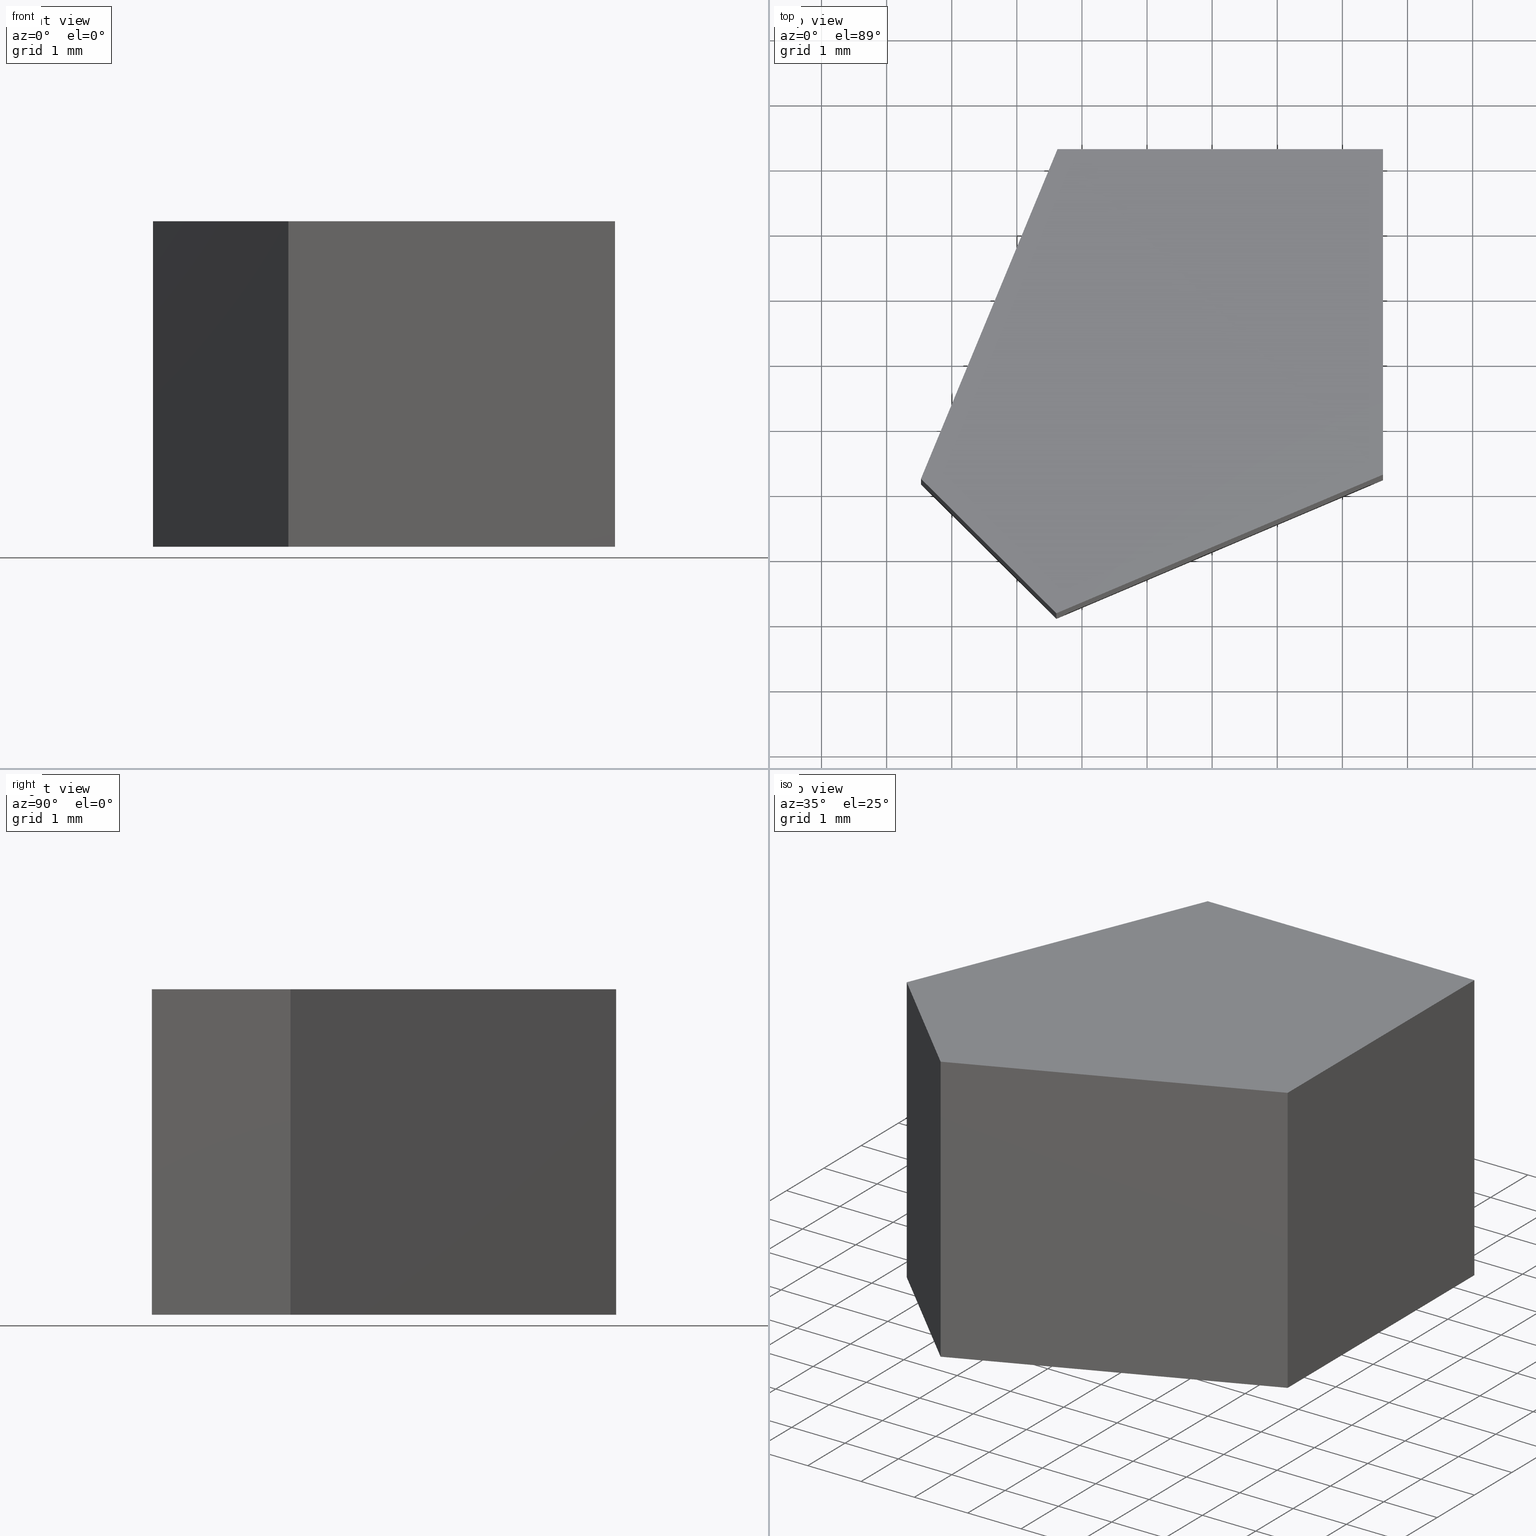
[diagram: canonical four-view strip — front | top / right | iso, engineering-drawing reading convention]
A machine part, canonical four-view strip (front | top / right | iso — engineering-drawing reading convention). The complete STEP part file that produces these views, byte-faithful:
ISO-10303-21;
HEADER;
FILE_DESCRIPTION (( 'STEP AP203' ),
    '1' );
FILE_NAME ('365500.STEP',
    '2019-07-23T09:59:26',
    ( '' ),
    ( '' ),
    'SwSTEP 2.0',
    'SolidWorks 2016',
    '' );
FILE_SCHEMA (( 'CONFIG_CONTROL_DESIGN' ));
ENDSEC;

DATA;
#1 = EDGE_CURVE ( 'NONE', #88, #216, #329, .T. ) ;
#2 = CC_DESIGN_APPROVAL ( #69, ( #335 ) ) ;
#3 = COORDINATED_UNIVERSAL_TIME_OFFSET ( 8, 0, .AHEAD. ) ;
#4 = ORIENTED_EDGE ( 'NONE', *, *, #114, .T. ) ;
#5 = COORDINATED_UNIVERSAL_TIME_OFFSET ( 8, 0, .AHEAD. ) ;
#6 = PERSON_AND_ORGANIZATION ( #76, #61 ) ;
#7 = ORIENTED_EDGE ( 'NONE', *, *, #191, .T. ) ;
#8 = APPROVAL ( #271, 'δָ��' ) ;
#9 = EDGE_CURVE ( 'NONE', #216, #322, #197, .T. ) ;
#10 = DATE_AND_TIME ( #345, #17 ) ;
#11 = ORIENTED_EDGE ( 'NONE', *, *, #176, .T. ) ;
#12 = DATE_AND_TIME ( #165, #146 ) ;
#13 = APPROVAL ( #294, 'δָ��' ) ;
#14 = VECTOR ( 'NONE', #20, 1000.000000000000000 ) ;
#15 = CARTESIAN_POINT ( 'NONE',  ( 11.60801107383556300, 9.117638843926226100, 5.000000000000000000 ) ) ;
#16 = CARTESIAN_POINT ( 'NONE',  ( 11.62476252515132200, 16.24712349419276000, 0.0000000000000000000 ) ) ;
#17 = LOCAL_TIME ( 17, 59, 26.00000000000000000, #86 ) ;
#18 = ORIENTED_EDGE ( 'NONE', *, *, #151, .F. ) ;
#19 = CC_DESIGN_SECURITY_CLASSIFICATION ( #327, ( #101 ) ) ;
#20 = DIRECTION ( 'NONE',  ( -0.0000000000000000000, -0.0000000000000000000, -1.000000000000000000 ) ) ;
#21 = CARTESIAN_POINT ( 'NONE',  ( 16.62476252515132200, 16.24712349419276000, 0.0000000000000000000 ) ) ;
#22 = CC_DESIGN_PERSON_AND_ORGANIZATION_ASSIGNMENT ( #262, #34, ( #101 ) ) ;
#23 =( LENGTH_UNIT ( ) NAMED_UNIT ( * ) SI_UNIT ( .MILLI., .METRE. ) );
#24 = CALENDAR_DATE ( 2019, 23, 7 ) ;
#25 = DIRECTION ( 'NONE',  ( 1.000000000000000000, 0.0000000000000000000, -0.0000000000000000000 ) ) ;
#26 = EDGE_LOOP ( 'NONE', ( #4, #169, #293, #128, #305 ) ) ;
#27 = CARTESIAN_POINT ( 'NONE',  ( 0.0000000000000000000, 0.0000000000000000000, 0.0000000000000000000 ) ) ;
#28 = DIRECTION ( 'NONE',  ( -0.0000000000000000000, -0.0000000000000000000, -1.000000000000000000 ) ) ;
#29 = PLANE ( 'NONE',  #161 ) ;
#30 = ORIENTED_EDGE ( 'NONE', *, *, #111, .T. ) ;
#31 = APPROVAL_STATUS ( 'not_yet_approved' ) ;
#32 = MANIFOLD_SOLID_BREP ( '͹̨-����1', #160 ) ;
#33 = PERSON_AND_ORGANIZATION_ROLE ( 'creator' ) ;
#34 = PERSON_AND_ORGANIZATION_ROLE ( 'creator' ) ;
#35 = APPROVAL_STATUS ( 'not_yet_approved' ) ;
#36 = DATE_AND_TIME ( #105, #277 ) ;
#37 = VECTOR ( 'NONE', #336, 1000.000000000000100 ) ;
#38 = EDGE_LOOP ( 'NONE', ( #208, #149, #227, #68 ) ) ;
#39 = MECHANICAL_CONTEXT ( 'NONE', #222, 'mechanical' ) ;
#40 = CC_DESIGN_APPROVAL ( #154, ( #287 ) ) ;
#41 = VECTOR ( 'NONE', #78, 999.9999999999998900 ) ;
#42 = ORIENTED_EDGE ( 'NONE', *, *, #114, .F. ) ;
#43 = CC_DESIGN_PERSON_AND_ORGANIZATION_ASSIGNMENT ( #107, #116, ( #335 ) ) ;
#44 = VECTOR ( 'NONE', #82, 999.9999999999998900 ) ;
#45 = CARTESIAN_POINT ( 'NONE',  ( 11.62476252515132200, 16.24712349419276000, 5.000000000000000000 ) ) ;
#46 = CC_DESIGN_PERSON_AND_ORGANIZATION_ASSIGNMENT ( #6, #252, ( #213 ) ) ;
#47 = LINE ( 'NONE', #183, #14 ) ;
#48 = DIRECTION ( 'NONE',  ( -1.000000000000000000, 0.0000000000000000000, 0.0000000000000000000 ) ) ;
#49 = CARTESIAN_POINT ( 'NONE',  ( 16.62476252515132200, 11.24712349419276000, 5.000000000000000000 ) ) ;
#50 = LOCAL_TIME ( 17, 59, 26.00000000000000000, #91 ) ;
#51 = LINE ( 'NONE', #341, #44 ) ;
#52 = PRODUCT_DEFINITION_SHAPE ( 'NONE', 'NONE',  #335 ) ;
#53 = ADVANCED_FACE ( 'NONE', ( #207 ), #102, .F. ) ;
#54 = PRODUCT ( '365500', '365500', '', ( #267 ) ) ;
#55 = PRODUCT_DEFINITION ( 'δ֪', '', #101, #73 ) ;
#56 = DIRECTION ( 'NONE',  ( -0.9205048534524398200, -0.3907311284892749400, 0.0000000000000000000 ) ) ;
#57 = AXIS2_PLACEMENT_3D ( 'NONE', #285, #137, #243 ) ;
#58 = APPROVAL_STATUS ( 'not_yet_approved' ) ;
#59 = APPROVAL_STATUS ( 'not_yet_approved' ) ;
#60 = PERSON_AND_ORGANIZATION ( #76, #61 ) ;
#61 = ORGANIZATION ( 'δָ��', 'δָ��', '' ) ;
#62 = SECURITY_CLASSIFICATION_LEVEL ( 'unclassified' ) ;
#63 = APPLICATION_PROTOCOL_DEFINITION ( 'international standard', 'config_control_design', 1994, #200 ) ;
#64 = APPROVAL_PERSON_ORGANIZATION ( #220, #331, #219 ) ;
#65 = ORIENTED_EDGE ( 'NONE', *, *, #314, .F. ) ;
#66 = AXIS2_PLACEMENT_3D ( 'NONE', #15, #129, #261 ) ;
#67 = LOCAL_TIME ( 17, 59, 26.00000000000000000, #225 ) ;
#68 = ORIENTED_EDGE ( 'NONE', *, *, #236, .T. ) ;
#69 = APPROVAL ( #31, 'δָ��' ) ;
#70 = APPROVAL_PERSON_ORGANIZATION ( #60, #93, #247 ) ;
#71 = CARTESIAN_POINT ( 'NONE',  ( 0.0000000000000000000, 0.0000000000000000000, 0.0000000000000000000 ) ) ;
#72 = DIRECTION ( 'NONE',  ( 0.0000000000000000000, -0.0000000000000000000, 1.000000000000000000 ) ) ;
#73 = DESIGN_CONTEXT ( 'detailed design', #200, 'design' ) ;
#74 = PERSON_AND_ORGANIZATION ( #76, #61 ) ;
#75 = EDGE_LOOP ( 'NONE', ( #7, #97, #18, #11 ) ) ;
#76 = PERSON ( 'δָ��', 'δָ��', 'δָ��', ('δָ��'), ('δָ��'), ('δָ��') ) ;
#77 = CARTESIAN_POINT ( 'NONE',  ( 16.62476252515132200, 16.24712349419276000, 0.0000000000000000000 ) ) ;
#78 = DIRECTION ( 'NONE',  ( 0.7096581851591069500, -0.7045461377629449500, -0.0000000000000000000 ) ) ;
#79 = DATE_AND_TIME ( #96, #67 ) ;
#80 = LINE ( 'NONE', #306, #41 ) ;
#81 = ORIENTED_EDGE ( 'NONE', *, *, #95, .T. ) ;
#82 = DIRECTION ( 'NONE',  ( 0.7096581851591069500, -0.7045461377629449500, -0.0000000000000000000 ) ) ;
#83 = DIRECTION ( 'NONE',  ( -0.3907311284892749400, 0.9205048534524398200, 0.0000000000000000000 ) ) ;
#84 = DIRECTION ( 'NONE',  ( -0.3826834323650836800, -0.9238795325112891800, 0.0000000000000000000 ) ) ;
#85 = APPROVAL_ROLE ( '' ) ;
#86 = COORDINATED_UNIVERSAL_TIME_OFFSET ( 8, 0, .AHEAD. ) ;
#87 = AXIS2_PLACEMENT_3D ( 'NONE', #71, #72, #313 ) ;
#88 = VERTEX_POINT ( 'NONE', #104 ) ;
#89 = APPROVAL_ROLE ( '' ) ;
#90 = SECURITY_CLASSIFICATION_LEVEL ( 'unclassified' ) ;
#91 = COORDINATED_UNIVERSAL_TIME_OFFSET ( 8, 0, .AHEAD. ) ;
#92 = VECTOR ( 'NONE', #127, 1000.000000000000000 ) ;
#93 = APPROVAL ( #35, 'δָ��' ) ;
#94 = ADVANCED_FACE ( 'NONE', ( #193 ), #339, .F. ) ;
#95 = EDGE_CURVE ( 'NONE', #113, #156, #241, .T. ) ;
#96 = CALENDAR_DATE ( 2019, 23, 7 ) ;
#97 = ORIENTED_EDGE ( 'NONE', *, *, #95, .F. ) ;
#98 = LOCAL_TIME ( 17, 59, 26.00000000000000000, #5 ) ;
#99 = VECTOR ( 'NONE', #84, 1000.000000000000200 ) ;
#100 = CARTESIAN_POINT ( 'NONE',  ( 11.60801107383556300, 9.117638843926226100, 5.000000000000000000 ) ) ;
#101 = PRODUCT_DEFINITION_FORMATION_WITH_SPECIFIED_SOURCE ( '�κ�', '', #54, .NOT_KNOWN. ) ;
#102 = PLANE ( 'NONE',  #66 ) ;
#103 = VERTEX_POINT ( 'NONE', #21 ) ;
#104 = CARTESIAN_POINT ( 'NONE',  ( 11.60801107383556300, 9.117638843926226100, 5.000000000000000000 ) ) ;
#105 = CALENDAR_DATE ( 2019, 23, 7 ) ;
#106 = DIRECTION ( 'NONE',  ( -0.0000000000000000000, -0.0000000000000000000, -1.000000000000000000 ) ) ;
#107 = PERSON_AND_ORGANIZATION ( #76, #61 ) ;
#108 = CARTESIAN_POINT ( 'NONE',  ( 16.62476252515132200, 11.24712349419276000, 0.0000000000000000000 ) ) ;
#109 = CC_DESIGN_PERSON_AND_ORGANIZATION_ASSIGNMENT ( #196, #170, ( #327 ) ) ;
#110 = DIRECTION ( 'NONE',  ( -0.3826834323650836800, -0.9238795325112891800, 0.0000000000000000000 ) ) ;
#111 = EDGE_CURVE ( 'NONE', #347, #119, #47, .T. ) ;
#112 = LINE ( 'NONE', #77, #325 ) ;
#113 = VERTEX_POINT ( 'NONE', #45 ) ;
#114 = EDGE_CURVE ( 'NONE', #88, #238, #215, .T. ) ;
#115 = APPROVAL_ROLE ( '' ) ;
#116 = PERSON_AND_ORGANIZATION_ROLE ( 'creator' ) ;
#117 = LINE ( 'NONE', #317, #123 ) ;
#118 = VECTOR ( 'NONE', #159, 1000.000000000000000 ) ;
#119 = VERTEX_POINT ( 'NONE', #125 ) ;
#120 = CC_DESIGN_APPROVAL ( #13, ( #311 ) ) ;
#121 = AXIS2_PLACEMENT_3D ( 'NONE', #291, #348, #189 ) ;
#122 = COORDINATED_UNIVERSAL_TIME_OFFSET ( 8, 0, .AHEAD. ) ;
#123 = VECTOR ( 'NONE', #106, 1000.000000000000000 ) ;
#124 = UNCERTAINTY_MEASURE_WITH_UNIT (LENGTH_MEASURE( 1.000000000000000100E-005 ), #23, 'distance_accuracy_value', 'NONE');
#125 = CARTESIAN_POINT ( 'NONE',  ( 9.527288383901918700, 11.18337297566149500, 0.0000000000000000000 ) ) ;
#126 = CALENDAR_DATE ( 2019, 23, 7 ) ;
#127 = DIRECTION ( 'NONE',  ( 0.0000000000000000000, 1.000000000000000000, 0.0000000000000000000 ) ) ;
#128 = ORIENTED_EDGE ( 'NONE', *, *, #310, .T. ) ;
#129 = DIRECTION ( 'NONE',  ( 0.7045461377629450600, 0.7096581851591070600, -0.0000000000000000000 ) ) ;
#130 = PERSON_AND_ORGANIZATION ( #76, #61 ) ;
#131 = PERSON_AND_ORGANIZATION ( #76, #61 ) ;
#132 = DIRECTION ( 'NONE',  ( 0.0000000000000000000, 0.0000000000000000000, 1.000000000000000000 ) ) ;
#133 = ADVANCED_FACE ( 'NONE', ( #269 ), #284, .F. ) ;
#134 = PLANE ( 'NONE',  #57 ) ;
#135 = PLANE ( 'NONE',  #244 ) ;
#136 = APPROVAL_PERSON_ORGANIZATION ( #152, #154, #296 ) ;
#137 = DIRECTION ( 'NONE',  ( 0.9238795325112892900, -0.3826834323650836800, 0.0000000000000000000 ) ) ;
#138 = FACE_OUTER_BOUND ( 'NONE', #75, .T. ) ;
#139 = ORIENTED_EDGE ( 'NONE', *, *, #236, .F. ) ;
#140 = CARTESIAN_POINT ( 'NONE',  ( 0.0000000000000000000, 0.0000000000000000000, 5.000000000000000000 ) ) ;
#141 = CC_DESIGN_PERSON_AND_ORGANIZATION_ASSIGNMENT ( #231, #33, ( #287 ) ) ;
#142 = PERSON_AND_ORGANIZATION_ROLE ( 'design_supplier' ) ;
#143 = COORDINATED_UNIVERSAL_TIME_OFFSET ( 8, 0, .AHEAD. ) ;
#144 = EDGE_LOOP ( 'NONE', ( #280, #179, #309, #30 ) ) ;
#145 = DATE_TIME_ROLE ( 'creation_date' ) ;
#146 = LOCAL_TIME ( 17, 59, 26.00000000000000000, #202 ) ;
#147 = CC_DESIGN_DATE_AND_TIME_ASSIGNMENT ( #10, #249, ( #335 ) ) ;
#148 = VECTOR ( 'NONE', #342, 1000.000000000000000 ) ;
#149 = ORIENTED_EDGE ( 'NONE', *, *, #176, .F. ) ;
#150 = EDGE_CURVE ( 'NONE', #238, #275, #256, .T. ) ;
#151 = EDGE_CURVE ( 'NONE', #275, #113, #185, .T. ) ;
#152 = PERSON_AND_ORGANIZATION ( #76, #61 ) ;
#153 = ORIENTED_EDGE ( 'NONE', *, *, #337, .F. ) ;
#154 = APPROVAL ( #59, 'δָ��' ) ;
#155 = CALENDAR_DATE ( 2019, 23, 7 ) ;
#156 = VERTEX_POINT ( 'NONE', #16 ) ;
#157 = PRODUCT_DEFINITION_SHAPE ( 'NONE', 'NONE',  #55 ) ;
#158 = APPROVAL_DATE_TIME ( #36, #93 ) ;
#159 = DIRECTION ( 'NONE',  ( -0.0000000000000000000, -0.0000000000000000000, -1.000000000000000000 ) ) ;
#160 = CLOSED_SHELL ( 'NONE', ( #198, #94, #171, #297, #53, #328, #133 ) ) ;
#161 = AXIS2_PLACEMENT_3D ( 'NONE', #239, #83, #56 ) ;
#162 = CARTESIAN_POINT ( 'NONE',  ( 16.62476252515132200, 11.24712349419276000, 5.000000000000000000 ) ) ;
#163 = CARTESIAN_POINT ( 'NONE',  ( 9.527288383901918700, 11.18337297566149500, 5.000000000000000000 ) ) ;
#164 = CARTESIAN_POINT ( 'NONE',  ( 16.62476252515132200, 11.24712349419276000, 0.0000000000000000000 ) ) ;
#165 = CALENDAR_DATE ( 2019, 23, 7 ) ;
#166 = CC_DESIGN_APPROVAL ( #331, ( #55 ) ) ;
#167 = EDGE_CURVE ( 'NONE', #119, #216, #80, .T. ) ;
#168 = APPROVAL_DATE_TIME ( #237, #8 ) ;
#169 = ORIENTED_EDGE ( 'NONE', *, *, #150, .T. ) ;
#170 = PERSON_AND_ORGANIZATION_ROLE ( 'classification_officer' ) ;
#171 = ADVANCED_FACE ( 'NONE', ( #138 ), #217, .F. ) ;
#172 = CC_DESIGN_DATE_AND_TIME_ASSIGNMENT ( #206, #199, ( #327 ) ) ;
#173 = APPROVAL_DATE_TIME ( #79, #13 ) ;
#174 = PERSON_AND_ORGANIZATION ( #76, #61 ) ;
#175 = ORIENTED_EDGE ( 'NONE', *, *, #191, .F. ) ;
#176 = EDGE_CURVE ( 'NONE', #275, #103, #253, .T. ) ;
#177 = CC_DESIGN_PERSON_AND_ORGANIZATION_ASSIGNMENT ( #273, #251, ( #101 ) ) ;
#178 = VECTOR ( 'NONE', #110, 1000.000000000000200 ) ;
#179 = ORIENTED_EDGE ( 'NONE', *, *, #1, .F. ) ;
#180 = PERSON_AND_ORGANIZATION ( #76, #61 ) ;
#181 = DATE_AND_TIME ( #126, #232 ) ;
#182 = CC_DESIGN_DATE_AND_TIME_ASSIGNMENT ( #12, #298, ( #311 ) ) ;
#183 = CARTESIAN_POINT ( 'NONE',  ( 9.527288383901918700, 11.18337297566149500, 5.000000000000000000 ) ) ;
#184 = CARTESIAN_POINT ( 'NONE',  ( 16.62476252515132200, 16.24712349419276000, 5.000000000000000000 ) ) ;
#185 = LINE ( 'NONE', #184, #226 ) ;
#186 = AXIS2_PLACEMENT_3D ( 'NONE', #49, #281, #235 ) ;
#187 = VECTOR ( 'NONE', #209, 1000.000000000000100 ) ;
#188 = CC_DESIGN_SECURITY_CLASSIFICATION ( #311, ( #287 ) ) ;
#189 = DIRECTION ( 'NONE',  ( 0.0000000000000000000, -0.0000000000000000000, -1.000000000000000000 ) ) ;
#190 = DIRECTION ( 'NONE',  ( 1.000000000000000000, 0.0000000000000000000, 0.0000000000000000000 ) ) ;
#191 = EDGE_CURVE ( 'NONE', #103, #156, #112, .T. ) ;
#192 = CARTESIAN_POINT ( 'NONE',  ( 16.62476252515132200, 16.24712349419276000, 5.000000000000000000 ) ) ;
#193 = FACE_OUTER_BOUND ( 'NONE', #38, .T. ) ;
#194 = EDGE_LOOP ( 'NONE', ( #278, #139, #42, #242 ) ) ;
#195 = APPLICATION_PROTOCOL_DEFINITION ( 'international standard', 'config_control_design', 1994, #223 ) ;
#196 = PERSON_AND_ORGANIZATION ( #76, #61 ) ;
#197 = LINE ( 'NONE', #260, #187 ) ;
#198 = ADVANCED_FACE ( 'NONE', ( #203 ), #29, .F. ) ;
#199 = DATE_TIME_ROLE ( 'classification_date' ) ;
#200 = APPLICATION_CONTEXT ( 'configuration controlled 3d designs of mechanical parts and assemblies' ) ;
#201 = ORIENTED_EDGE ( 'NONE', *, *, #310, .F. ) ;
#202 = COORDINATED_UNIVERSAL_TIME_OFFSET ( 8, 0, .AHEAD. ) ;
#203 = FACE_OUTER_BOUND ( 'NONE', #194, .T. ) ;
#204 = CC_DESIGN_APPROVAL ( #8, ( #327 ) ) ;
#205 =( GEOMETRIC_REPRESENTATION_CONTEXT ( 3 ) GLOBAL_UNCERTAINTY_ASSIGNED_CONTEXT ( ( #124 ) ) GLOBAL_UNIT_ASSIGNED_CONTEXT ( ( #23, #316, #344 ) ) REPRESENTATION_CONTEXT ( 'NONE', 'WORKASPACE' ) );
#206 = DATE_AND_TIME ( #279, #292 ) ;
#207 = FACE_OUTER_BOUND ( 'NONE', #144, .T. ) ;
#208 = ORIENTED_EDGE ( 'NONE', *, *, #337, .T. ) ;
#209 = DIRECTION ( 'NONE',  ( 0.9205048534524398200, 0.3907311284892748800, 0.0000000000000000000 ) ) ;
#210 = APPROVAL_PERSON_ORGANIZATION ( #180, #8, #85 ) ;
#211 = CARTESIAN_POINT ( 'NONE',  ( 11.62476252515132200, 16.24712349419276000, 0.0000000000000000000 ) ) ;
#212 = DIRECTION ( 'NONE',  ( 0.0000000000000000000, 0.0000000000000000000, 1.000000000000000000 ) ) ;
#213 = PRODUCT ( '365500', '365500', '', ( #39 ) ) ;
#214 = PERSON_AND_ORGANIZATION ( #76, #61 ) ;
#215 = LINE ( 'NONE', #100, #37 ) ;
#216 = VERTEX_POINT ( 'NONE', #218 ) ;
#217 = PLANE ( 'NONE',  #121 ) ;
#218 = CARTESIAN_POINT ( 'NONE',  ( 11.60801107383556300, 9.117638843926226100, 0.0000000000000000000 ) ) ;
#219 = APPROVAL_ROLE ( '' ) ;
#220 = PERSON_AND_ORGANIZATION ( #76, #61 ) ;
#221 = PERSON_AND_ORGANIZATION_ROLE ( 'classification_officer' ) ;
#222 = APPLICATION_CONTEXT ( 'configuration controlled 3d designs of mechanical parts and assemblies' ) ;
#223 = APPLICATION_CONTEXT ( 'configuration controlled 3d designs of mechanical parts and assemblies' ) ;
#224 = CC_DESIGN_PERSON_AND_ORGANIZATION_ASSIGNMENT ( #131, #326, ( #54 ) ) ;
#225 = COORDINATED_UNIVERSAL_TIME_OFFSET ( 8, 0, .AHEAD. ) ;
#226 = VECTOR ( 'NONE', #48, 1000.000000000000000 ) ;
#227 = ORIENTED_EDGE ( 'NONE', *, *, #150, .F. ) ;
#228 = DESIGN_CONTEXT ( 'detailed design', #270, 'design' ) ;
#229 = CC_DESIGN_DATE_AND_TIME_ASSIGNMENT ( #288, #145, ( #55 ) ) ;
#230 = ORIENTED_EDGE ( 'NONE', *, *, #9, .F. ) ;
#231 = PERSON_AND_ORGANIZATION ( #76, #61 ) ;
#232 = LOCAL_TIME ( 17, 59, 26.00000000000000000, #263 ) ;
#233 = CC_DESIGN_PERSON_AND_ORGANIZATION_ASSIGNMENT ( #214, #221, ( #311 ) ) ;
#234 = CARTESIAN_POINT ( 'NONE',  ( 11.60801107383556300, 9.117638843926226100, 5.000000000000000000 ) ) ;
#235 = DIRECTION ( 'NONE',  ( 0.0000000000000000000, 0.0000000000000000000, 1.000000000000000000 ) ) ;
#236 = EDGE_CURVE ( 'NONE', #238, #322, #117, .T. ) ;
#237 = DATE_AND_TIME ( #302, #324 ) ;
#238 = VERTEX_POINT ( 'NONE', #320 ) ;
#239 = CARTESIAN_POINT ( 'NONE',  ( 11.60801107383556300, 9.117638843926226100, 5.000000000000000000 ) ) ;
#240 = LOCAL_TIME ( 17, 59, 26.00000000000000000, #3 ) ;
#241 = LINE ( 'NONE', #257, #118 ) ;
#242 = ORIENTED_EDGE ( 'NONE', *, *, #1, .T. ) ;
#243 = DIRECTION ( 'NONE',  ( 0.3826834323650836800, 0.9238795325112892900, 0.0000000000000000000 ) ) ;
#244 = AXIS2_PLACEMENT_3D ( 'NONE', #140, #286, #25 ) ;
#245 = FACE_OUTER_BOUND ( 'NONE', #26, .T. ) ;
#246 = PRODUCT_RELATED_PRODUCT_CATEGORY ( 'detail', '', ( #54 ) ) ;
#247 = APPROVAL_ROLE ( '' ) ;
#248 = APPLICATION_PROTOCOL_DEFINITION ( 'international standard', 'config_control_design', 1994, #270 ) ;
#249 = DATE_TIME_ROLE ( 'creation_date' ) ;
#250 = APPROVAL_DATE_TIME ( #282, #331 ) ;
#251 = PERSON_AND_ORGANIZATION_ROLE ( 'design_supplier' ) ;
#252 = PERSON_AND_ORGANIZATION_ROLE ( 'design_owner' ) ;
#253 = LINE ( 'NONE', #192, #340 ) ;
#254 = ORIENTED_EDGE ( 'NONE', *, *, #111, .F. ) ;
#255 = EDGE_CURVE ( 'NONE', #347, #88, #51, .T. ) ;
#256 = LINE ( 'NONE', #162, #92 ) ;
#257 = CARTESIAN_POINT ( 'NONE',  ( 11.62476252515132200, 16.24712349419276000, 5.000000000000000000 ) ) ;
#258 = ORIENTED_EDGE ( 'NONE', *, *, #167, .F. ) ;
#259 = AXIS2_PLACEMENT_3D ( 'NONE', #264, #212, #290 ) ;
#260 = CARTESIAN_POINT ( 'NONE',  ( 11.60801107383556300, 9.117638843926226100, 0.0000000000000000000 ) ) ;
#261 = DIRECTION ( 'NONE',  ( -0.7096581851591069500, 0.7045461377629449500, 0.0000000000000000000 ) ) ;
#262 = PERSON_AND_ORGANIZATION ( #76, #61 ) ;
#263 = COORDINATED_UNIVERSAL_TIME_OFFSET ( 8, 0, .AHEAD. ) ;
#264 = CARTESIAN_POINT ( 'NONE',  ( 0.0000000000000000000, 0.0000000000000000000, 0.0000000000000000000 ) ) ;
#265 = CARTESIAN_POINT ( 'NONE',  ( 16.62476252515132200, 16.24712349419276000, 5.000000000000000000 ) ) ;
#266 = DIRECTION ( 'NONE',  ( -1.000000000000000000, 0.0000000000000000000, 0.0000000000000000000 ) ) ;
#267 = MECHANICAL_CONTEXT ( 'NONE', #223, 'mechanical' ) ;
#268 = PERSON_AND_ORGANIZATION ( #76, #61 ) ;
#269 = FACE_OUTER_BOUND ( 'NONE', #303, .T. ) ;
#270 = APPLICATION_CONTEXT ( 'configuration controlled 3d designs of mechanical parts and assemblies' ) ;
#271 = APPROVAL_STATUS ( 'not_yet_approved' ) ;
#272 = PRODUCT_RELATED_PRODUCT_CATEGORY ( 'detail', '', ( #213 ) ) ;
#273 = PERSON_AND_ORGANIZATION ( #76, #61 ) ;
#274 = SHAPE_DEFINITION_REPRESENTATION ( #157, #312 ) ;
#275 = VERTEX_POINT ( 'NONE', #265 ) ;
#276 = AXIS2_PLACEMENT_3D ( 'NONE', #27, #132, #190 ) ;
#277 = LOCAL_TIME ( 17, 59, 26.00000000000000000, #332 ) ;
#278 = ORIENTED_EDGE ( 'NONE', *, *, #9, .T. ) ;
#279 = CALENDAR_DATE ( 2019, 23, 7 ) ;
#280 = ORIENTED_EDGE ( 'NONE', *, *, #167, .T. ) ;
#281 = DIRECTION ( 'NONE',  ( -1.000000000000000000, 0.0000000000000000000, 0.0000000000000000000 ) ) ;
#282 = DATE_AND_TIME ( #24, #98 ) ;
#283 = ORIENTED_EDGE ( 'NONE', *, *, #314, .T. ) ;
#284 = PLANE ( 'NONE',  #87 ) ;
#285 = CARTESIAN_POINT ( 'NONE',  ( 11.62476252515132200, 16.24712349419276000, 5.000000000000000000 ) ) ;
#286 = DIRECTION ( 'NONE',  ( 0.0000000000000000000, -0.0000000000000000000, 1.000000000000000000 ) ) ;
#287 = PRODUCT_DEFINITION_FORMATION_WITH_SPECIFIED_SOURCE ( '�κ�', '', #213, .NOT_KNOWN. ) ;
#288 = DATE_AND_TIME ( #334, #240 ) ;
#289 = VECTOR ( 'NONE', #307, 1000.000000000000000 ) ;
#290 = DIRECTION ( 'NONE',  ( 1.000000000000000000, 0.0000000000000000000, 0.0000000000000000000 ) ) ;
#291 = CARTESIAN_POINT ( 'NONE',  ( 16.62476252515132200, 16.24712349419276000, 5.000000000000000000 ) ) ;
#292 = LOCAL_TIME ( 17, 59, 26.00000000000000000, #122 ) ;
#293 = ORIENTED_EDGE ( 'NONE', *, *, #151, .T. ) ;
#294 = APPROVAL_STATUS ( 'not_yet_approved' ) ;
#295 = APPLICATION_PROTOCOL_DEFINITION ( 'international standard', 'config_control_design', 1994, #222 ) ;
#296 = APPROVAL_ROLE ( '' ) ;
#297 = ADVANCED_FACE ( 'NONE', ( #308 ), #134, .F. ) ;
#298 = DATE_TIME_ROLE ( 'classification_date' ) ;
#299 = APPROVAL_DATE_TIME ( #338, #154 ) ;
#300 = LINE ( 'NONE', #318, #99 ) ;
#301 = CC_DESIGN_APPROVAL ( #93, ( #101 ) ) ;
#302 = CALENDAR_DATE ( 2019, 23, 7 ) ;
#303 = EDGE_LOOP ( 'NONE', ( #230, #258, #65, #175, #153 ) ) ;
#304 = LINE ( 'NONE', #164, #148 ) ;
#305 = ORIENTED_EDGE ( 'NONE', *, *, #255, .T. ) ;
#306 = CARTESIAN_POINT ( 'NONE',  ( 11.60801107383556300, 9.117638843926226100, 0.0000000000000000000 ) ) ;
#307 = DIRECTION ( 'NONE',  ( -0.0000000000000000000, -0.0000000000000000000, -1.000000000000000000 ) ) ;
#308 = FACE_OUTER_BOUND ( 'NONE', #330, .T. ) ;
#309 = ORIENTED_EDGE ( 'NONE', *, *, #255, .F. ) ;
#310 = EDGE_CURVE ( 'NONE', #113, #347, #300, .T. ) ;
#311 = SECURITY_CLASSIFICATION ( '', '', #90 ) ;
#312 = ADVANCED_BREP_SHAPE_REPRESENTATION ( '365500', ( #32, #276 ), #205 ) ;
#313 = DIRECTION ( 'NONE',  ( 1.000000000000000000, 0.0000000000000000000, -0.0000000000000000000 ) ) ;
#314 = EDGE_CURVE ( 'NONE', #156, #119, #321, .T. ) ;
#315 = APPROVAL_PERSON_ORGANIZATION ( #130, #13, #115 ) ;
#316 =( NAMED_UNIT ( * ) PLANE_ANGLE_UNIT ( ) SI_UNIT ( $, .RADIAN. ) );
#317 = CARTESIAN_POINT ( 'NONE',  ( 16.62476252515132200, 11.24712349419276000, 5.000000000000000000 ) ) ;
#318 = CARTESIAN_POINT ( 'NONE',  ( 11.62476252515132200, 16.24712349419276000, 5.000000000000000000 ) ) ;
#319 = CC_DESIGN_PERSON_AND_ORGANIZATION_ASSIGNMENT ( #268, #142, ( #287 ) ) ;
#320 = CARTESIAN_POINT ( 'NONE',  ( 16.62476252515132200, 11.24712349419276000, 5.000000000000000000 ) ) ;
#321 = LINE ( 'NONE', #211, #178 ) ;
#322 = VERTEX_POINT ( 'NONE', #108 ) ;
#323 = PERSON_AND_ORGANIZATION_ROLE ( 'creator' ) ;
#324 = LOCAL_TIME ( 17, 59, 26.00000000000000000, #143 ) ;
#325 = VECTOR ( 'NONE', #266, 1000.000000000000000 ) ;
#326 = PERSON_AND_ORGANIZATION_ROLE ( 'design_owner' ) ;
#327 = SECURITY_CLASSIFICATION ( '', '', #62 ) ;
#328 = ADVANCED_FACE ( 'NONE', ( #245 ), #135, .T. ) ;
#329 = LINE ( 'NONE', #234, #289 ) ;
#330 = EDGE_LOOP ( 'NONE', ( #283, #254, #201, #81 ) ) ;
#331 = APPROVAL ( #58, 'δָ��' ) ;
#332 = COORDINATED_UNIVERSAL_TIME_OFFSET ( 8, 0, .AHEAD. ) ;
#333 = APPROVAL_PERSON_ORGANIZATION ( #174, #69, #89 ) ;
#334 = CALENDAR_DATE ( 2019, 23, 7 ) ;
#335 = PRODUCT_DEFINITION ( 'δ֪', '', #287, #228 ) ;
#336 = DIRECTION ( 'NONE',  ( 0.9205048534524398200, 0.3907311284892748800, 0.0000000000000000000 ) ) ;
#337 = EDGE_CURVE ( 'NONE', #322, #103, #304, .T. ) ;
#338 = DATE_AND_TIME ( #155, #50 ) ;
#339 = PLANE ( 'NONE',  #186 ) ;
#340 = VECTOR ( 'NONE', #28, 1000.000000000000000 ) ;
#341 = CARTESIAN_POINT ( 'NONE',  ( 11.60801107383556300, 9.117638843926226100, 5.000000000000000000 ) ) ;
#342 = DIRECTION ( 'NONE',  ( 0.0000000000000000000, 1.000000000000000000, 0.0000000000000000000 ) ) ;
#343 = CC_DESIGN_PERSON_AND_ORGANIZATION_ASSIGNMENT ( #74, #323, ( #55 ) ) ;
#344 =( NAMED_UNIT ( * ) SI_UNIT ( $, .STERADIAN. ) SOLID_ANGLE_UNIT ( ) );
#345 = CALENDAR_DATE ( 2019, 23, 7 ) ;
#346 = APPROVAL_DATE_TIME ( #181, #69 ) ;
#347 = VERTEX_POINT ( 'NONE', #163 ) ;
#348 = DIRECTION ( 'NONE',  ( 0.0000000000000000000, -1.000000000000000000, 0.0000000000000000000 ) ) ;
ENDSEC;
END-ISO-10303-21;
